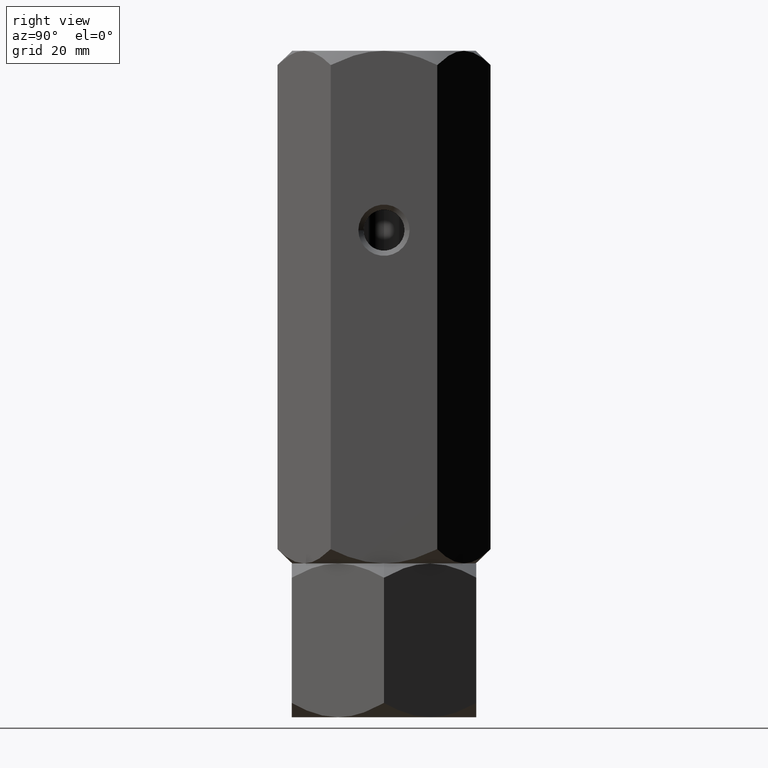
[diagram: clean part render]
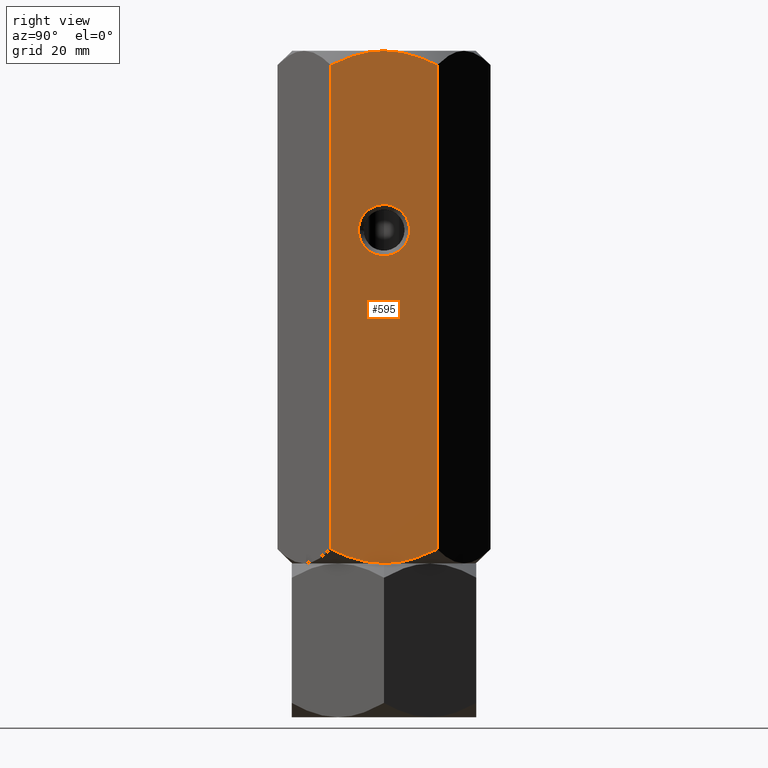
[diagram: same view with one face highlighted and labeled with its STEP entity id]
A machine part, right view. The second image highlights one B-rep face of the part: STEP entity #595.
In plain terms, the highlighted planar face has unit normal (-1, -0, 0).
Its self-contained STEP definition (entity closure, byte-faithful):
#3 = EDGE_CURVE ( 'NONE', #662, #34, #1840, .T. ) ;
#21 = B_SPLINE_CURVE_WITH_KNOTS ( 'NONE', 3,
 ( #581, #405, #239, #1958, #1053, #1038 ),
 .UNSPECIFIED., .F., .F.,
 ( 4, 2, 4 ),
 ( 0.1107820986329207114, 0.1159835759449454884, 0.1211850532569702515 ),
 .UNSPECIFIED. ) ;
#34 = VERTEX_POINT ( 'NONE', #811 ) ;
#42 = CARTESIAN_POINT ( 'NONE',  ( 18.00000000000000355, 0.4513223419669411540, 29.99999999999999645 ) ) ;
#66 = CARTESIAN_POINT ( 'NONE',  ( 17.99999999999999645, 1.814095138421049969, 30.08549766552032878 ) ) ;
#99 = B_SPLINE_CURVE_WITH_KNOTS ( 'NONE', 3,
 ( #200, #1779, #1626, #968, #512, #1478, #1757, #1743, #220, #819, #66, #1293, #42, #360 ),
 .UNSPECIFIED., .F., .F.,
 ( 4, 2, 2, 2, 2, 2, 4 ),
 ( 0.1004087599824664279, 0.1017054273137732168, 0.1030020946450800057, 0.1055954293076935696, 0.1081887639703071335, 0.1094854313016139225, 0.1107820986329207114 ),
 .UNSPECIFIED. ) ;
#105 = FACE_OUTER_BOUND ( 'NONE', #1769, .T. ) ;
#126 = CARTESIAN_POINT ( 'NONE',  ( 18.00000000000000000, 4.999999999999986677, 95.00000000000000000 ) ) ;
#128 = DIRECTION ( 'NONE',  ( 0.000000000000000000, -1.000000000000000000, 0.000000000000000000 ) ) ;
#172 = CARTESIAN_POINT ( 'NONE',  ( 18.00000000000000000, 3.004629197474316879E-15, 130.0000000000000000 ) ) ;
#177 = CARTESIAN_POINT ( 'NONE',  ( 18.00000000000000355, 10.39230484541326582, 127.2153903091734719 ) ) ;
#199 = B_SPLINE_CURVE_WITH_KNOTS ( 'NONE', 3,
 ( #1236, #1544, #1692, #1088, #760, #1867, #806, #319, #1712, #1567, #1419, #177 ),
 .UNSPECIFIED., .F., .F.,
 ( 4, 2, 2, 2, 2, 4 ),
 ( 0.1357849622299866776, 0.1384403299496675677, 0.1410956976693484299, 0.1424233815291888749, 0.1437510653890293200, 0.1464064331087102100 ),
 .UNSPECIFIED. ) ;
#200 = CARTESIAN_POINT ( 'NONE',  ( 18.00000000000000000, 10.39230484541326760, 32.78460969082651388 ) ) ;
#220 = CARTESIAN_POINT ( 'NONE',  ( 18.00000000000000000, 3.613967831719442358, 30.33777405539505878 ) ) ;
#239 = CARTESIAN_POINT ( 'NONE',  ( 18.00000000000000355, -3.592318780390965749, 30.27737646598160381 ) ) ;
#249 = FACE_BOUND ( 'NONE', #1759, .T. ) ;
#288 = CARTESIAN_POINT ( 'NONE',  ( 18.00000000000000000, 3.004629197474316879E-15, 130.0000000000000000 ) ) ;
#309 = VECTOR ( 'NONE', #897, 1000.000000000000000 ) ;
#319 = CARTESIAN_POINT ( 'NONE',  ( 18.00000000000000355, 7.079033589539283966, 128.6621752905917333 ) ) ;
#360 = CARTESIAN_POINT ( 'NONE',  ( 18.00000000000000355, 3.004629197474317668E-15, 30.00000000000000000 ) ) ;
#370 = ORIENTED_EDGE ( 'NONE', *, *, #950, .F. ) ;
#397 = EDGE_CURVE ( 'NONE', #1955, #580, #199, .T. ) ;
#402 = ORIENTED_EDGE ( 'NONE', *, *, #434, .F. ) ;
#405 = CARTESIAN_POINT ( 'NONE',  ( 18.00000000000000000, -1.810443484980114315, 29.99999999999999645 ) ) ;
#407 = ORIENTED_EDGE ( 'NONE', *, *, #1517, .F. ) ;
#423 = CARTESIAN_POINT ( 'NONE',  ( 18.00000000000000355, -10.39230484541326938, 130.0000000000000000 ) ) ;
#434 = EDGE_CURVE ( 'NONE', #835, #1362, #99, .T. ) ;
#440 = CARTESIAN_POINT ( 'NONE',  ( 18.00000000000000711, -3.587060540269673581, 129.6511584591503663 ) ) ;
#512 = CARTESIAN_POINT ( 'NONE',  ( 18.00000000000000000, 8.347141026087365745, 31.83748894582579680 ) ) ;
#518 = CIRCLE ( 'NONE', #640, 4.999999999999986677 ) ;
#566 = EDGE_CURVE ( 'NONE', #1362, #34, #21, .T. ) ;
#580 = VERTEX_POINT ( 'NONE', #1497 ) ;
#581 = CARTESIAN_POINT ( 'NONE',  ( 18.00000000000000355, 3.004629197474317668E-15, 30.00000000000000000 ) ) ;
#595 = ADVANCED_FACE ( 'NONE', ( #249, #105 ), #1376, .F. ) ;
#599 = CARTESIAN_POINT ( 'NONE',  ( 18.00000000000000000, 10.39230484541326760, 130.0000000000000000 ) ) ;
#640 = AXIS2_PLACEMENT_3D ( 'NONE', #1366, #722, #128 ) ;
#647 = EDGE_CURVE ( 'NONE', #710, #1598, #903, .T. ) ;
#662 = VERTEX_POINT ( 'NONE', #1257 ) ;
#689 = CARTESIAN_POINT ( 'NONE',  ( 18.00000000000000355, 3.004629197474317668E-15, 30.00000000000000000 ) ) ;
#710 = VERTEX_POINT ( 'NONE', #126 ) ;
#722 = DIRECTION ( 'NONE',  ( -1.000000000000000000, -1.669238443041287676E-16, 0.000000000000000000 ) ) ;
#728 = DIRECTION ( 'NONE',  ( 1.669238443041287676E-16, -1.000000000000000000, 0.000000000000000000 ) ) ;
#760 = CARTESIAN_POINT ( 'NONE',  ( 18.00000000000000000, 4.490077666353614383, 129.4670882305740633 ) ) ;
#765 = CARTESIAN_POINT ( 'NONE',  ( 18.00000000000000000, -4.916425057501001561, 129.3453764673965338 ) ) ;
#790 = CARTESIAN_POINT ( 'NONE',  ( 18.00000000000000711, -3.142436559411511787, 129.7330844772793625 ) ) ;
#800 = CARTESIAN_POINT ( 'NONE',  ( 18.00000000000000711, -1.803906801777787283, 129.9313735860566510 ) ) ;
#806 = CARTESIAN_POINT ( 'NONE',  ( 18.00000000000000000, 6.222838675660257834, 128.9589267867257831 ) ) ;
#811 = CARTESIAN_POINT ( 'NONE',  ( 18.00000000000000355, -10.39230484541326938, 32.78460969082652099 ) ) ;
#819 = CARTESIAN_POINT ( 'NONE',  ( 17.99999999999999645, 2.268365306453417496, 30.13694515672431962 ) ) ;
#835 = VERTEX_POINT ( 'NONE', #1492 ) ;
#866 = ORIENTED_EDGE ( 'NONE', *, *, #647, .T. ) ;
#897 = DIRECTION ( 'NONE',  ( -0.000000000000000000, -0.000000000000000000, -1.000000000000000000 ) ) ;
#903 = CIRCLE ( 'NONE', #1102, 4.999999999999986677 ) ;
#950 = EDGE_CURVE ( 'NONE', #580, #835, #1369, .T. ) ;
#968 = CARTESIAN_POINT ( 'NONE',  ( 18.00000000000000355, 8.765915541430075564, 32.01767199654641161 ) ) ;
#995 = CARTESIAN_POINT ( 'NONE',  ( 18.00000000000000000, -4.999999999999984013, 95.00000000000000000 ) ) ;
#1038 = CARTESIAN_POINT ( 'NONE',  ( 18.00000000000000355, -10.39230484541326938, 32.78460969082652099 ) ) ;
#1053 = CARTESIAN_POINT ( 'NONE',  ( 18.00000000000000355, -8.778074610959537338, 31.97749457359966385 ) ) ;
#1065 = DIRECTION ( 'NONE',  ( 0.000000000000000000, -1.000000000000000000, 0.000000000000000000 ) ) ;
#1086 = ORIENTED_EDGE ( 'NONE', *, *, #397, .F. ) ;
#1088 = CARTESIAN_POINT ( 'NONE',  ( 17.99999999999999645, 3.609801717296726054, 129.6629563869406070 ) ) ;
#1102 = AXIS2_PLACEMENT_3D ( 'NONE', #1551, #1853, #1065 ) ;
#1118 = ORIENTED_EDGE ( 'NONE', *, *, #566, .F. ) ;
#1214 = CARTESIAN_POINT ( 'NONE',  ( 18.00000000000000355, -10.39230484541326938, 130.0000000000000000 ) ) ;
#1236 = CARTESIAN_POINT ( 'NONE',  ( 18.00000000000000000, 3.004629197474316879E-15, 130.0000000000000000 ) ) ;
#1257 = CARTESIAN_POINT ( 'NONE',  ( 18.00000000000000355, -10.39230484541327115, 127.2153903091734719 ) ) ;
#1267 = CARTESIAN_POINT ( 'NONE',  ( 18.00000000000000355, -8.773738849745866375, 128.0246733070071627 ) ) ;
#1277 = B_SPLINE_CURVE_WITH_KNOTS ( 'NONE', 3,
 ( #1549, #1267, #1852, #765, #2035, #440, #790, #800, #1583, #172 ),
 .UNSPECIFIED., .F., .F.,
 ( 4, 2, 2, 2, 4 ),
 ( 0.1251432358187493099, 0.1304640990243679799, 0.1317943148257726405, 0.1331245306271773288, 0.1357849622299866776 ),
 .UNSPECIFIED. ) ;
#1293 = CARTESIAN_POINT ( 'NONE',  ( 18.00000000000000000, 0.9043953770119648183, 30.01699796404104958 ) ) ;
#1319 = ORIENTED_EDGE ( 'NONE', *, *, #1884, .T. ) ;
#1362 = VERTEX_POINT ( 'NONE', #689 ) ;
#1366 = CARTESIAN_POINT ( 'NONE',  ( 18.00000000000000000, 3.004629197474317668E-15, 95.00000000000000000 ) ) ;
#1369 = LINE ( 'NONE', #599, #309 ) ;
#1376 = PLANE ( 'NONE',  #1440 ) ;
#1419 = CARTESIAN_POINT ( 'NONE',  ( 18.00000000000000000, 9.588742258688549569, 127.6171716025359615 ) ) ;
#1440 = AXIS2_PLACEMENT_3D ( 'NONE', #1214, #1679, #728 ) ;
#1478 = CARTESIAN_POINT ( 'NONE',  ( 18.00000000000000000, 7.082707117959930798, 31.32794757816468589 ) ) ;
#1492 = CARTESIAN_POINT ( 'NONE',  ( 18.00000000000000000, 10.39230484541326760, 32.78460969082651388 ) ) ;
#1497 = CARTESIAN_POINT ( 'NONE',  ( 18.00000000000000355, 10.39230484541326582, 127.2153903091734719 ) ) ;
#1517 = EDGE_CURVE ( 'NONE', #662, #1955, #1277, .T. ) ;
#1544 = CARTESIAN_POINT ( 'NONE',  ( 18.00000000000000355, 0.9035957219477273039, 129.9999999999999716 ) ) ;
#1549 = CARTESIAN_POINT ( 'NONE',  ( 18.00000000000000355, -10.39230484541327115, 127.2153903091734719 ) ) ;
#1551 = CARTESIAN_POINT ( 'NONE',  ( 18.00000000000000000, 3.004629197474317668E-15, 95.00000000000000000 ) ) ;
#1567 = CARTESIAN_POINT ( 'NONE',  ( 18.00000000000000355, 8.768789677609229116, 127.9925646427107750 ) ) ;
#1583 = CARTESIAN_POINT ( 'NONE',  ( 18.00000000000000355, -0.9053189119592043310, 130.0000000000000000 ) ) ;
#1598 = VERTEX_POINT ( 'NONE', #995 ) ;
#1626 = CARTESIAN_POINT ( 'NONE',  ( 18.00000000000000000, 9.587949197936602275, 32.39104427693801824 ) ) ;
#1679 = DIRECTION ( 'NONE',  ( -1.000000000000000000, -1.669238443041287676E-16, 0.000000000000000000 ) ) ;
#1685 = VECTOR ( 'NONE', #2008, 1000.000000000000000 ) ;
#1692 = CARTESIAN_POINT ( 'NONE',  ( 18.00000000000000000, 1.819471725873023082, 129.9299425183456549 ) ) ;
#1712 = CARTESIAN_POINT ( 'NONE',  ( 18.00000000000000000, 7.505374852926547824, 128.5017410783826222 ) ) ;
#1743 = CARTESIAN_POINT ( 'NONE',  ( 18.00000000000000355, 4.494632227792660473, 30.53404992808282259 ) ) ;
#1757 = CARTESIAN_POINT ( 'NONE',  ( 18.00000000000000355, 6.228990999673044371, 31.02917803657221185 ) ) ;
#1759 = EDGE_LOOP ( 'NONE', ( #866, #1319 ) ) ;
#1769 = EDGE_LOOP ( 'NONE', ( #407, #1896, #1118, #402, #370, #1086 ) ) ;
#1779 = CARTESIAN_POINT ( 'NONE',  ( 18.00000000000000000, 9.992749120313220601, 32.58483182827650637 ) ) ;
#1840 = LINE ( 'NONE', #423, #1685 ) ;
#1852 = CARTESIAN_POINT ( 'NONE',  ( 18.00000000000000355, -7.106474638017114209, 128.7209470529535054 ) ) ;
#1853 = DIRECTION ( 'NONE',  ( -1.000000000000000000, -1.669238443041287676E-16, 0.000000000000000000 ) ) ;
#1867 = CARTESIAN_POINT ( 'NONE',  ( 18.00000000000000711, 5.791963538276027279, 129.0956659220807694 ) ) ;
#1884 = EDGE_CURVE ( 'NONE', #1598, #710, #518, .T. ) ;
#1896 = ORIENTED_EDGE ( 'NONE', *, *, #3, .T. ) ;
#1955 = VERTEX_POINT ( 'NONE', #288 ) ;
#1958 = CARTESIAN_POINT ( 'NONE',  ( 18.00000000000000000, -7.109965447143213879, 31.27976516762686643 ) ) ;
#2008 = DIRECTION ( 'NONE',  ( -0.000000000000000000, -0.000000000000000000, -1.000000000000000000 ) ) ;
#2035 = CARTESIAN_POINT ( 'NONE',  ( 18.00000000000000355, -4.473385413500452046, 129.4575039536375414 ) ) ;